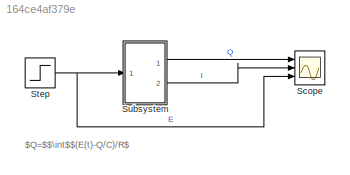
MODEL slx_164ce4af379e
KIND model
CONFIG AbsTol = auto
CONFIG EnableMultiTasking = off
CONFIG FixedStep = auto
CONFIG MaxStep = auto
CONFIG MinStep = auto
CONFIG RelTol = 1e-3
CONFIG SampleTimeConstraint = Unconstrained
CONFIG SolverName = VariableStepAuto
CONFIG StartTime = 0.0
CONFIG StopTime = 10.0
WORKSPACE source: mxarray member
WORKSPACE C = 1e-05
WORKSPACE R = 10
BLOCK [Scope] Scope
  Floating = off
  NumInputPorts = 3
  Ports = [3]
  ScopeSpecificationString = Simulink.scopes.TimeScopeBlockCfg('CurrentConfiguration', extmgr.ConfigurationSet(extmgr.Configuration('Core','General UI',true),extmgr.Configuration('Core','Source UI',true),extmgr.Configuration('Sources','WiredSimulink',true),extmgr.Configuration('Visuals','Time Domain',true,'SerializedDisplays',{struct('MinYLimReal','-0.000001','MaxYLimReal','0.000011','YLabelReal','','MinYLimMag','0.000000','M...<+2688ch>
BLOCK [Step] Step
  SampleTime = 0
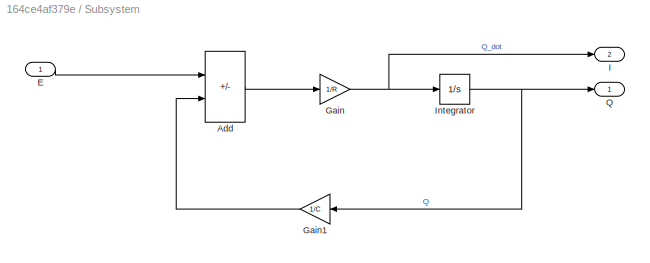
BLOCK [SubSystem] Subsystem
  Ports = [1, 2]
  RequestExecContextInheritance = off
BLOCK [Sum] Subsystem/Add
  IconShape = rectangular
  Inputs = +-
  Ports = [2, 1]
BLOCK [Inport] Subsystem/E
BLOCK [Gain] Subsystem/Gain
  Gain = 1/R
BLOCK [Gain] Subsystem/Gain1
  Gain = 1/C
BLOCK [Outport] Subsystem/I
  Port = 2
BLOCK [Integrator] Subsystem/Integrator
  Ports = [1, 1]
BLOCK [Outport] Subsystem/Q
ANNOTATION (root): $Q=$$\int$$(E(t)-Q/C)/R$
NET Step:1 -> Scope:3, Subsystem:1
LINE Subsystem/Add:1 -> Subsystem/Gain:1
LINE Subsystem/E:1 -> Subsystem/Add:1
LINE Subsystem/Gain1:1 -> Subsystem/Add:2
NET Subsystem/Gain:1 -> Subsystem/I:1, Subsystem/Integrator:1
NET Subsystem/Integrator:1 -> Subsystem/Gain1:1, Subsystem/Q:1
LINE Subsystem:1 -> Scope:1
LINE Subsystem:2 -> Scope:2
note: NET lines group one-source signal fan-out (src -> all destinations, sorted); 1:1 wires keep LINE
